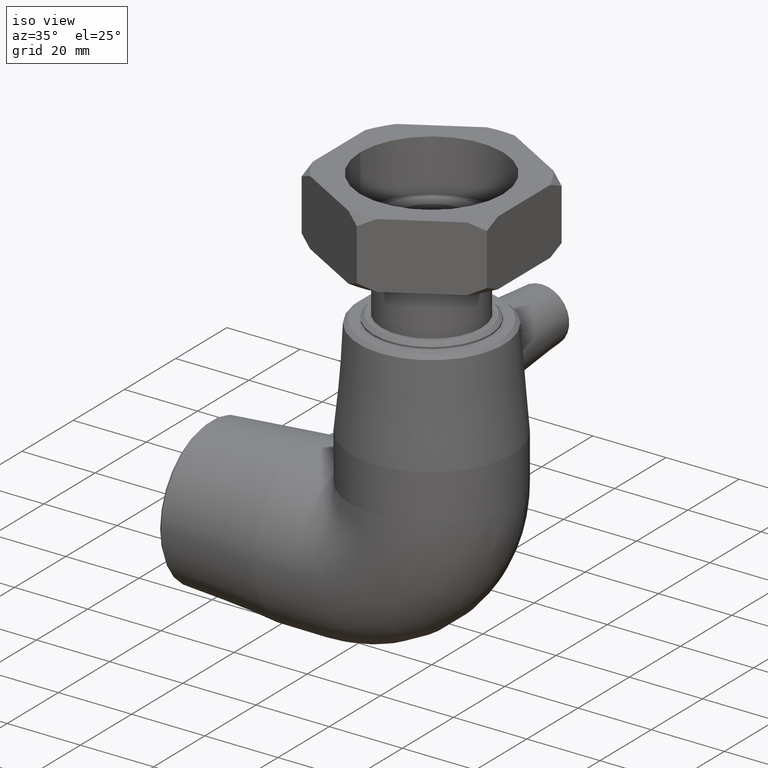
[diagram: clean part render]
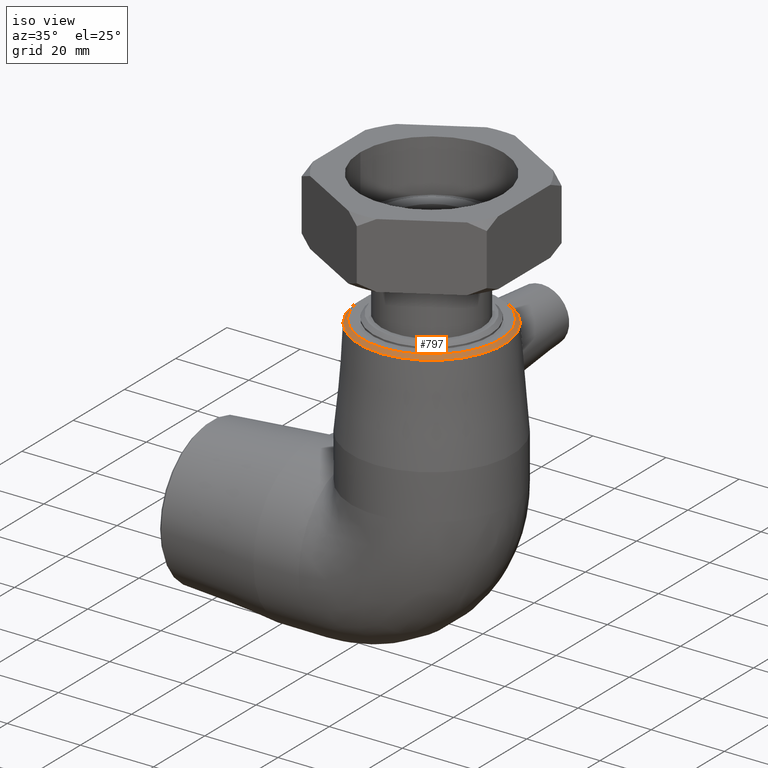
[diagram: same view with one face highlighted and labeled with its STEP entity id]
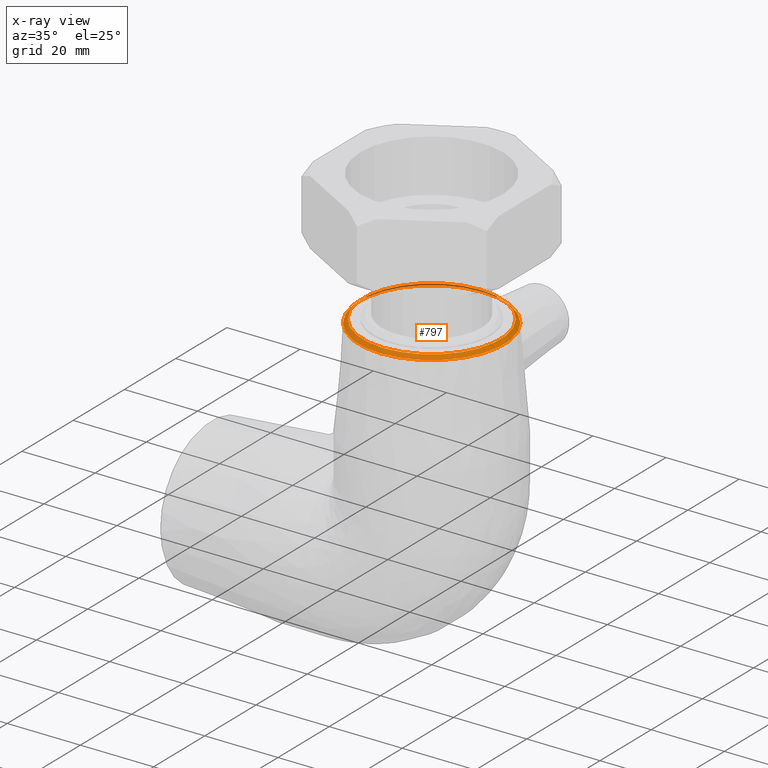
[diagram: x-ray of the same camera — body ghosted, the highlighted face saturated]
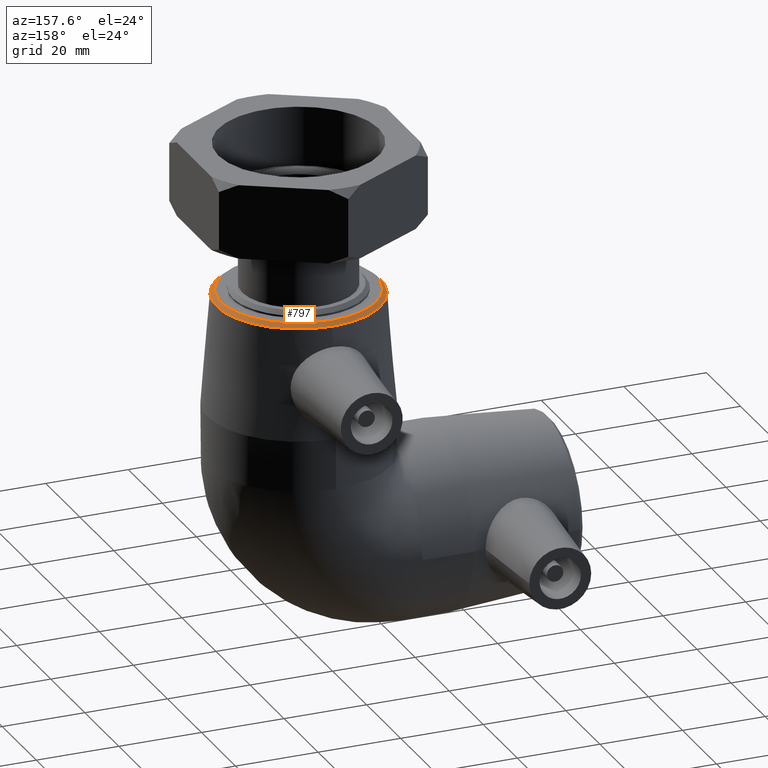
[diagram: same view with one face highlighted and labeled with its STEP entity id]
A machine part, iso view. The second image highlights one B-rep face of the part: STEP entity #797.
The next image is the same camera in x-ray: the body ghosted, the highlighted face saturated — about 14% of this face is hidden behind the body in this view.
A second angle (auxiliary view) of the same face is appended — the face is thin or edge-on in the first view.
In plain terms, the highlighted conical surface has half-angle 47.273 deg.
Its self-contained STEP definition (entity closure, byte-faithful):
#131=FACE_BOUND('',#266,.T.);
#190=FACE_OUTER_BOUND('',#265,.T.);
#265=EDGE_LOOP('',(#683));
#266=EDGE_LOOP('',(#684));
#350=CIRCLE('',#890,18.84);
#351=CIRCLE('',#891,19.8760971426856);
#427=VERTEX_POINT('',#1426);
#428=VERTEX_POINT('',#1428);
#523=EDGE_CURVE('',#427,#427,#350,.T.);
#524=EDGE_CURVE('',#428,#428,#351,.T.);
#683=ORIENTED_EDGE('',*,*,#523,.T.);
#684=ORIENTED_EDGE('',*,*,#524,.T.);
#761=CONICAL_SURFACE('',#889,19.3580485713428,47.2732416913591);
#797=ADVANCED_FACE('',(#190,#131),#761,.T.);
#889=AXIS2_PLACEMENT_3D('',#1425,#1080,#1081);
#890=AXIS2_PLACEMENT_3D('',#1427,#1082,#1083);
#891=AXIS2_PLACEMENT_3D('',#1429,#1084,#1085);
#1080=DIRECTION('center_axis',(-1.21054024776781E-15,-5.53440162962919E-33,
-1.));
#1081=DIRECTION('ref_axis',(-3.14355016927764E-17,-1.,1.10708186167494E-18));
#1082=DIRECTION('center_axis',(6.12323399573677E-17,-2.27504718160893E-18,
-1.));
#1083=DIRECTION('ref_axis',(-1.39306462443329E-34,-1.,2.27504718160893E-18));
#1084=DIRECTION('center_axis',(0.,0.,1.));
#1085=DIRECTION('ref_axis',(-6.12323399573676E-17,-1.,0.));
#1425=CARTESIAN_POINT('Origin',(-4.31440366760931E-15,2.64815367353245E-33,
60.5215103906888));
#1426=CARTESIAN_POINT('',(-1.42793816780581E-15,18.84,61.));
#1427=CARTESIAN_POINT('Origin',(-3.73517273739943E-15,5.2963073470649E-33,
61.));
#1428=CARTESIAN_POINT('',(-6.11069453508579E-15,19.8760971426856,60.0430207813776));
#1429=CARTESIAN_POINT('Origin',(-4.8936345978192E-15,0.,60.0430207813776));